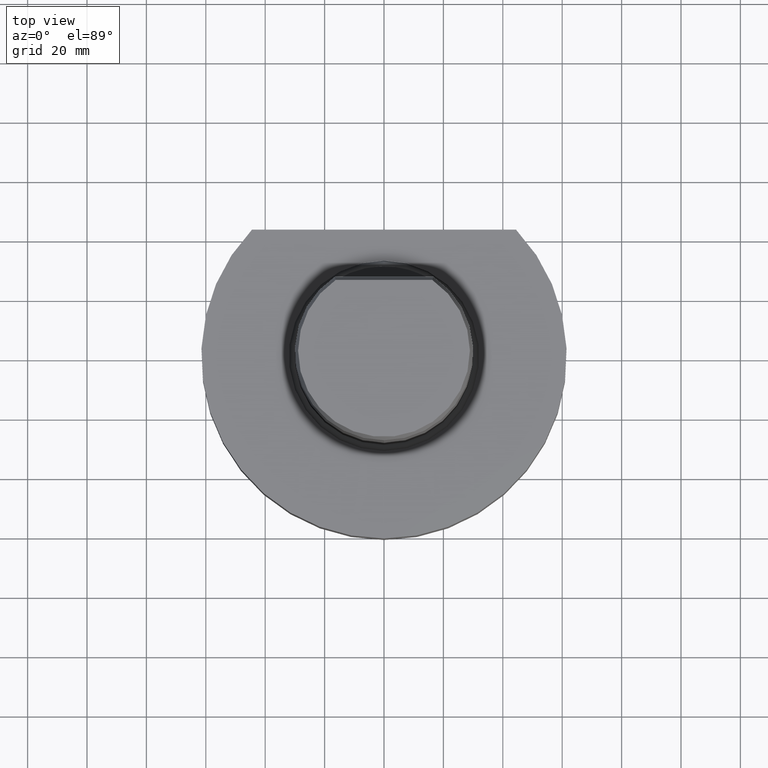
[diagram: clean part render]
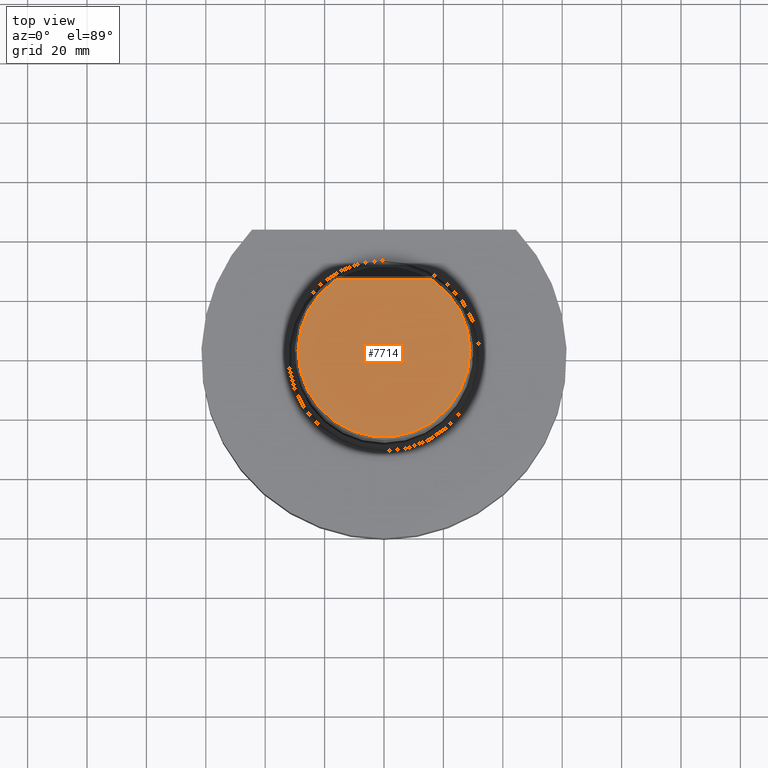
[diagram: same view with one face highlighted and labeled with its STEP entity id]
A machine part, top view. The second image highlights one B-rep face of the part: STEP entity #7714.
In plain terms, the highlighted planar face has unit normal (-0, -0, -1).
Its self-contained STEP definition (entity closure, byte-faithful):
#646 = VECTOR ( 'NONE', #11494, 1000.000000000000000 ) ;
#972 = PLANE ( 'NONE',  #5448 ) ;
#1258 = EDGE_CURVE ( 'NONE', #1954, #1775, #5232, .T. ) ;
#1775 = VERTEX_POINT ( 'NONE', #8936 ) ;
#1954 = VERTEX_POINT ( 'NONE', #9853 ) ;
#3780 = DIRECTION ( 'NONE',  ( -1.608122649676639066E-16, -1.000000000000000000, 0.000000000000000000 ) ) ;
#4043 = DIRECTION ( 'NONE',  ( -4.440892098500630106E-16, -1.224646799147350002E-16, -1.000000000000000000 ) ) ;
#5061 = FACE_OUTER_BOUND ( 'NONE', #9091, .T. ) ;
#5232 = LINE ( 'NONE', #13585, #646 ) ;
#5448 = AXIS2_PLACEMENT_3D ( 'NONE', #13637, #4043, #8310 ) ;
#5573 = ORIENTED_EDGE ( 'NONE', *, *, #11157, .F. ) ;
#5714 = CARTESIAN_POINT ( 'NONE',  ( 4.174438572590589854E-14, 1.151167991198510077E-14, 94.00000000000000000 ) ) ;
#7714 = ADVANCED_FACE ( 'Defeature completata1_51', ( #5061 ), #972, .F. ) ;
#7835 = DIRECTION ( 'NONE',  ( -4.440892098500630106E-16, -1.224646799147350002E-16, -1.000000000000000000 ) ) ;
#8310 = DIRECTION ( 'NONE',  ( -1.000000000000000000, 0.000000000000000000, 4.440892098500630106E-16 ) ) ;
#8936 = CARTESIAN_POINT ( 'NONE',  ( 16.25675343673379913, 23.92820323027550344, 94.00000000000000000 ) ) ;
#9091 = EDGE_LOOP ( 'NONE', ( #10807, #5573 ) ) ;
#9183 = CIRCLE ( 'NONE', #9859, 28.92820323027549989 ) ;
#9853 = CARTESIAN_POINT ( 'NONE',  ( -16.25675343673369966, 23.92820323027550344, 94.00000000000000000 ) ) ;
#9859 = AXIS2_PLACEMENT_3D ( 'NONE', #5714, #7835, #3780 ) ;
#10807 = ORIENTED_EDGE ( 'NONE', *, *, #1258, .F. ) ;
#11157 = EDGE_CURVE ( 'NONE', #1775, #1954, #9183, .T. ) ;
#11494 = DIRECTION ( 'NONE',  ( 1.000000000000000000, -1.608122649676639805E-16, -4.440892098500630106E-16 ) ) ;
#13585 = CARTESIAN_POINT ( 'NONE',  ( 4.559233428397308914E-14, 23.92820323027550344, 94.00000000000000000 ) ) ;
#13637 = CARTESIAN_POINT ( 'NONE',  ( 4.174438572590589854E-14, 1.151167991198510077E-14, 94.00000000000000000 ) ) ;